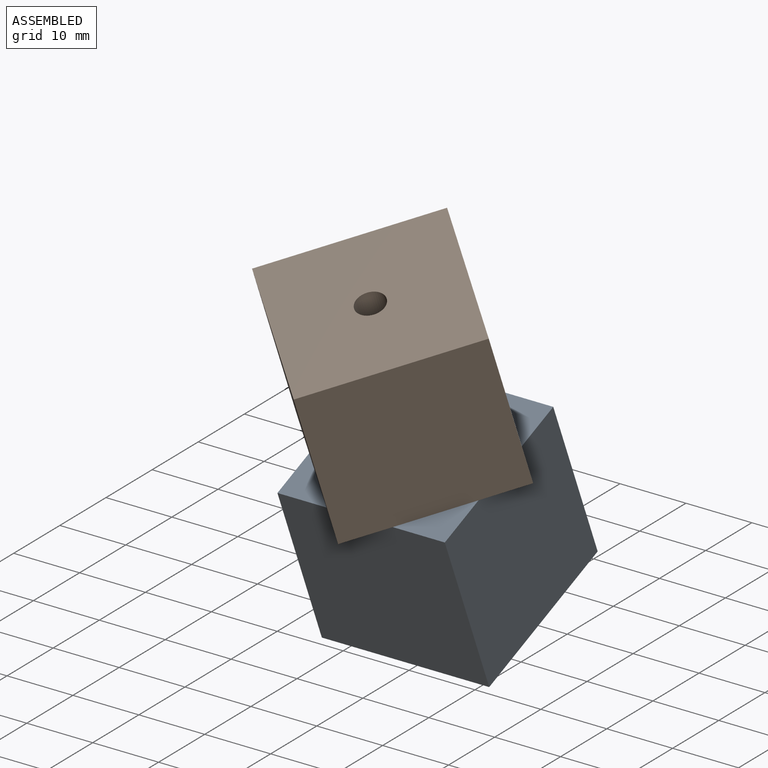
[diagram: assembled view]
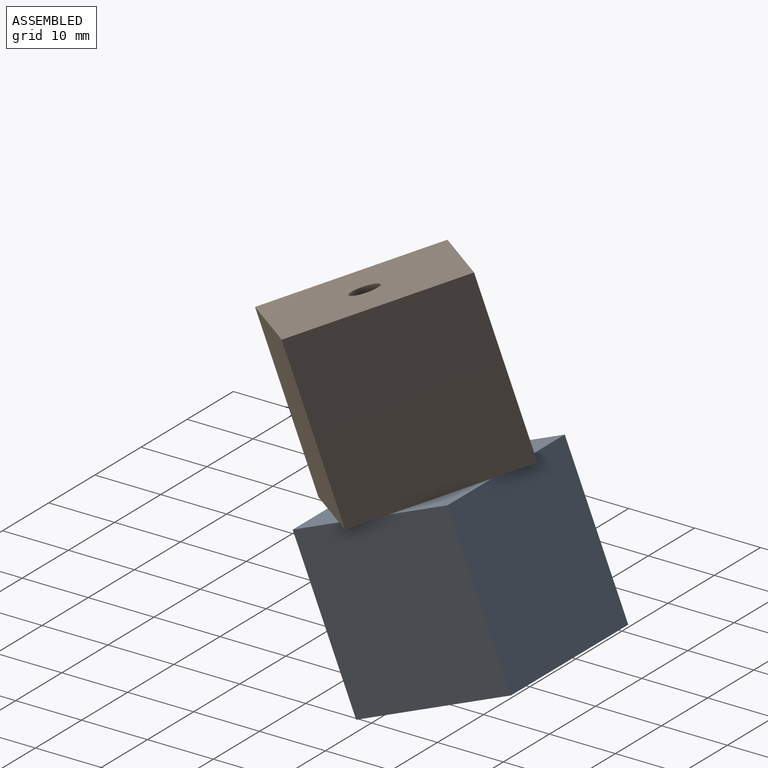
[diagram: assembled view, second angle]
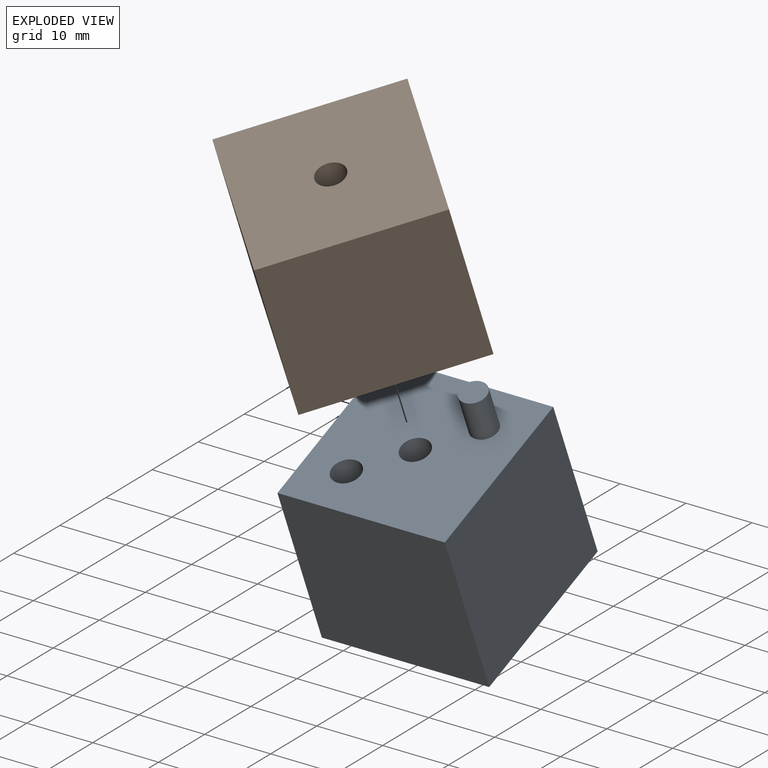
[diagram: exploded view]
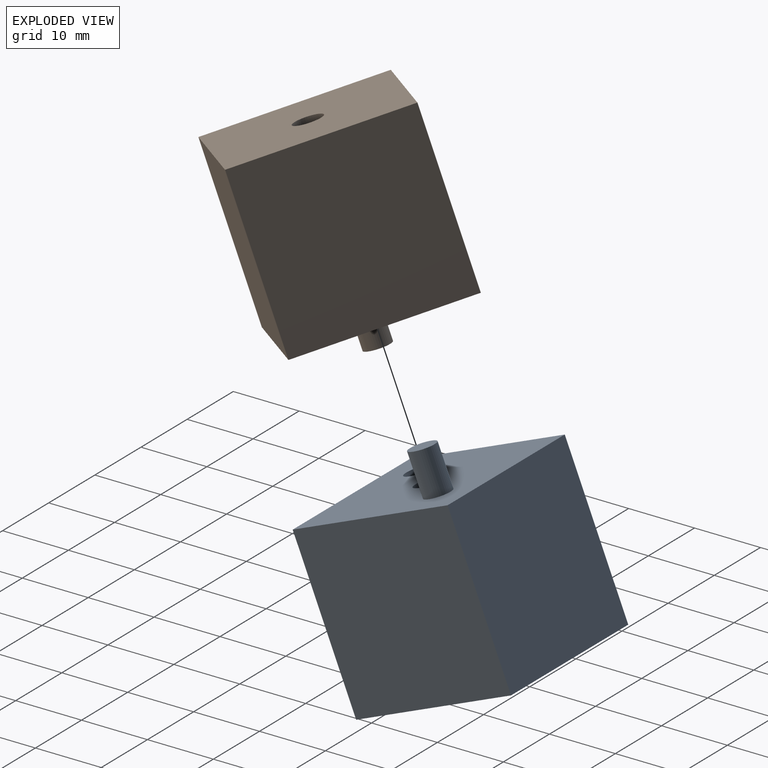
[diagram: exploded view, second angle]
ASSEMBLY  parts=2 mates=2
PART A: 11 faces, bbox 25.4x25.4x31.8 mm
  f0: plane 25.4x25.4mm, normal (1,0,0), area 645.2mm2, adj f1,f3,f4,f5
  f1: plane 25.4x25.4mm, normal (0,1,0), area 645.2mm2, adj f0,f2,f4,f5
  f2: plane 25.4x25.4mm, normal (-1,0,0), area 645.2mm2, adj f1,f3,f4,f5
  f3: plane 25.4x25.4mm, normal (0,-1,0), area 645.2mm2, adj f0,f2,f4,f5
  f4: plane 25.4x25.4mm, normal (0,0,1), area 604.2mm2, adj f0,f1,f2,f3,f6,f7,f9
  f5: plane 25.4x25.4mm, normal (0,0,-1), area 631mm2, adj f0,f1,f2,f3,f6
  f6: cylinder r=2.12mm len=25.4mm, axis (0,0,1), area 339.1mm2, adj f4,f5
  f7: cylinder r=2mm len=6.35mm, axis (0,0,-1), area 79.8mm2, adj f4,f8
  f8: plane 4x4mm, normal (0,0,1), area 12.6mm2, adj f7
  f9: cylinder r=2.12mm len=6.35mm, axis (0,0,1), area 84.8mm2, adj f4,f10
  f10: plane 4.25x4.25mm, normal (0,0,1), area 14.2mm2, adj f9
PART B: 11 faces, bbox 25.4x25.4x31.8 mm
  f0: plane 25.4x25.4mm, normal (1,0,0), area 645.2mm2, adj f1,f3,f4,f5
  f1: plane 25.4x25.4mm, normal (0,1,0), area 645.2mm2, adj f0,f2,f4,f5
  f2: plane 25.4x25.4mm, normal (-1,0,0), area 645.2mm2, adj f1,f3,f4,f5
  f3: plane 25.4x25.4mm, normal (0,-1,0), area 645.2mm2, adj f0,f2,f4,f5
  f4: plane 25.4x25.4mm, normal (0,0,1), area 604.2mm2, adj f0,f1,f2,f3,f6,f7,f9
  f5: plane 25.4x25.4mm, normal (0,0,-1), area 631mm2, adj f0,f1,f2,f3,f6
  f6: cylinder r=2.12mm len=25.4mm, axis (0,0,1), area 339.1mm2, adj f4,f5
  f7: cylinder r=2mm len=6.35mm, axis (0,0,-1), area 79.8mm2, adj f4,f8
  f8: plane 4x4mm, normal (0,0,1), area 12.6mm2, adj f7
  f9: cylinder r=2.12mm len=6.35mm, axis (0,0,1), area 84.8mm2, adj f4,f10
  f10: plane 4.25x4.25mm, normal (0,0,1), area 14.2mm2, adj f9
PLACE A rot(axis=(1,0,0),22.3deg) t=(-560.15,-248.79,23.87)mm
PLACE B rot(axis=(-0.92,0.38,0.08),159.4deg) t=(-560.15,-268.16,71.15)mm
MATE cylindrical B.f7 <-> A.f9  axis (0,-0.38,0.93) through (-566.5,-262,39.37)mm
MATE cylindrical A.f6 <-> B.f6  axis (0,-0.38,0.93) through (-560.15,-253.6,35.62)mm
